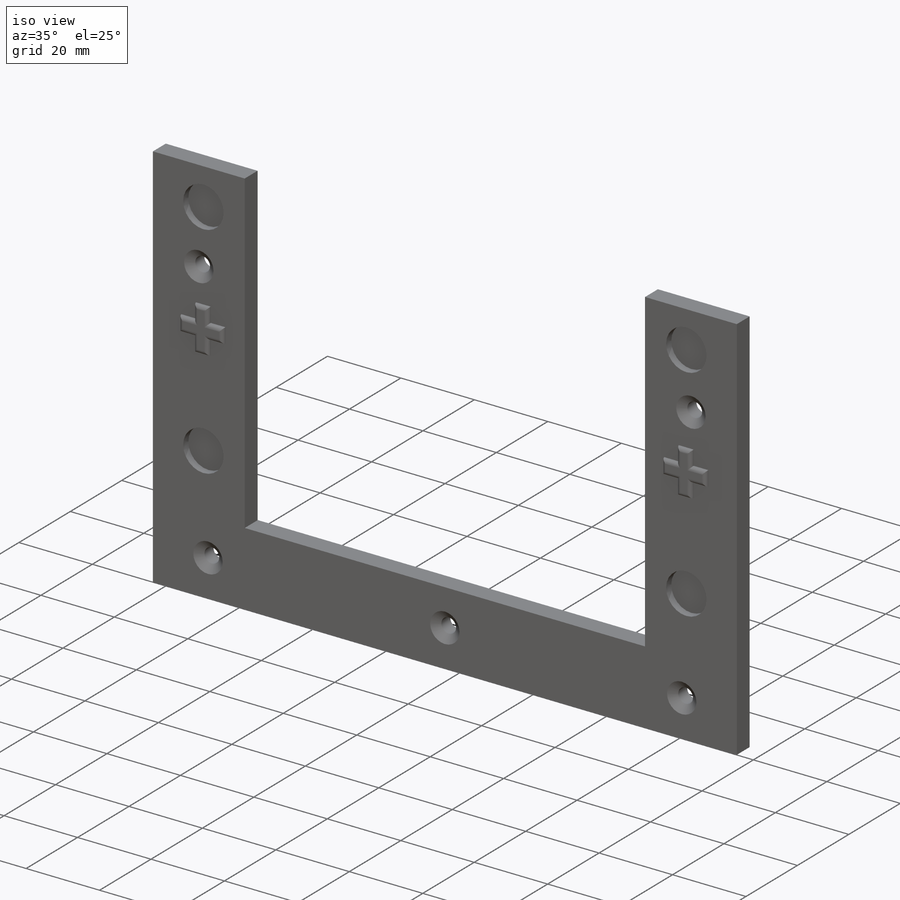
[diagram: iso view]
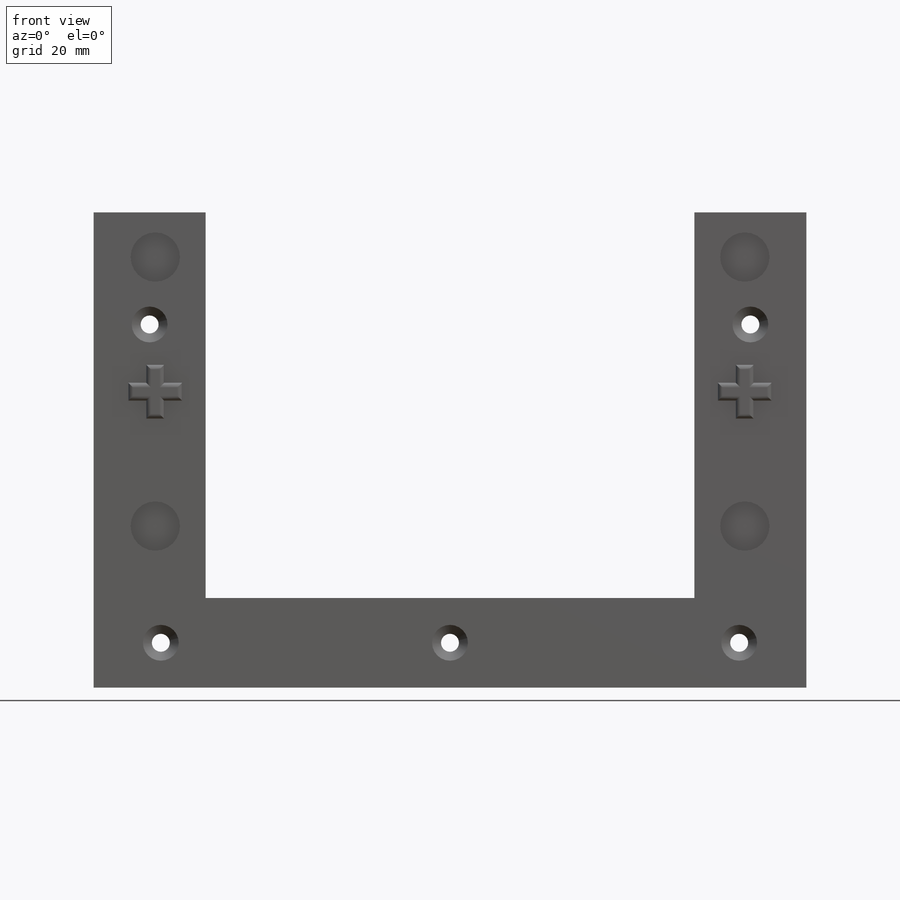
[diagram: front view]
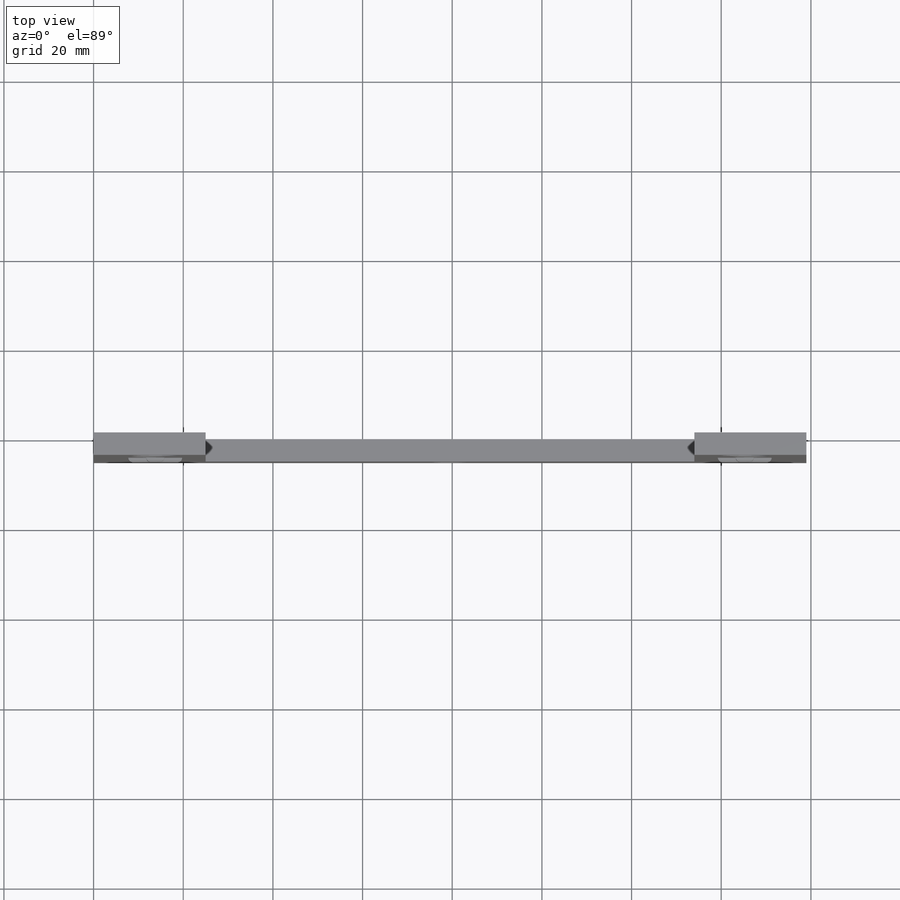
[diagram: top view]
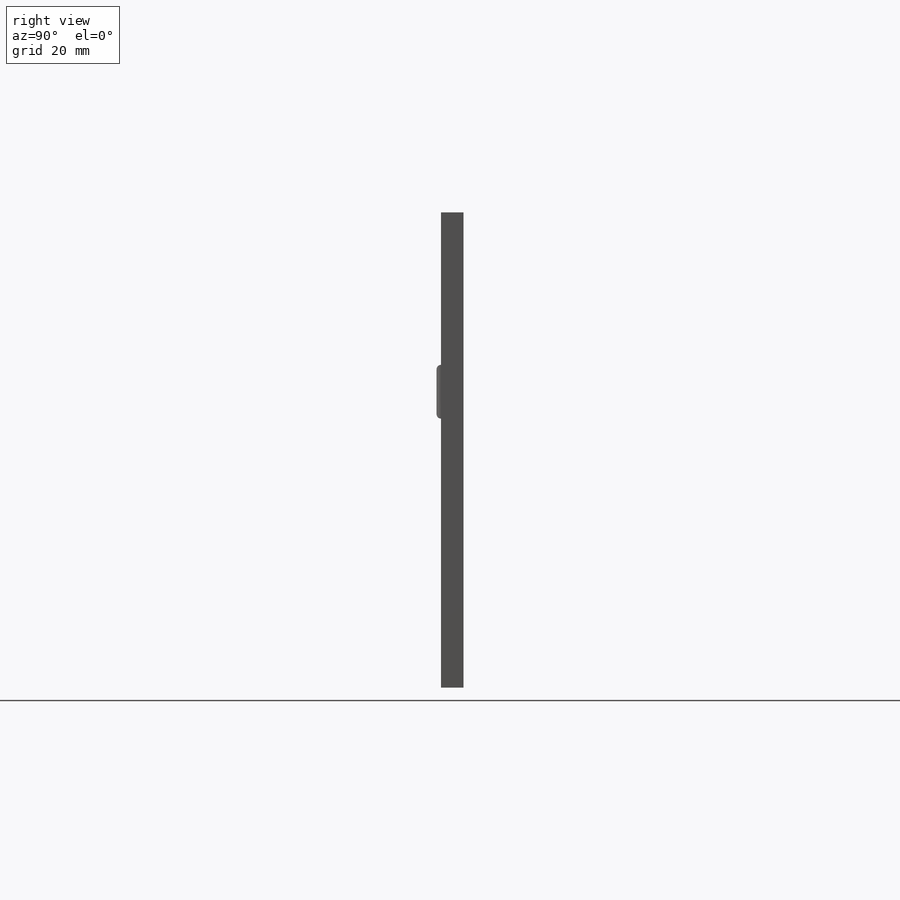
[diagram: right view]
SOLIDWORKS PART (.sldprt)
format: sldprt  version: not decoded by parser v0  size: 396,800 bytes
history: native  units: mm
features: sketch x5, plane x3, cut_extrude x3, extrude x2, material x1, chamfer x1, fillet x1 (+10 scaffold rows collapsed)
feature tree (26):
  scaffold x10  (default folders/planes/origin — collapsed)
  material  "Matériau <non spécifié>"
  plane  "Plan de face"
  plane  "Plan de dessus"
  plane  "Plan de droite"
  sketch  "Esquisse1"  dims[D1=159.0mm D2=106.0mm]
  extrude  "Boss.-Extru.1"  Depth=5mm
  sketch  "Esquisse2"  dims[c1.D1=20.8mm c1.D2=4.0mm c1.D3=20.0mm c1.D4=4.0mm c1.D5=20.8mm c1.D6=20.0mm c2.D1=30.0mm c2.D5=30.0mm c3.D1=4.0mm c3.D7=4.0mm c3.D8=8.0mm c3.D9=8.0mm c3.D10=8.0mm c3.D11=8.0mm c3.D12=3.0mm c3.D13=3.0mm c3.D14=79.5mm c3.D15=79.5mm c3.D4=4.0mm c3.D3=3.0mm c4.D4=3.0mm c4.D5=7.0mm c4.D6=45.0mm c4.D8=4.0mm c4.D2=4.0mm c4.D3=4.0mm c5.D4=4.0mm c5.D7=2.0mm c5.D8=1.5mm c5.D9=1.5mm c5.D5=13.75mm c6.D8=5.0mm c6.D9=5.0mm c6.D10=4.0mm c6.D11=4.0mm c6.D12=4.0mm c6.D13=4.0mm c6.D16=2.0mm c6.D17=3.0mm c7.D16=4.0mm c7.D17=4.0mm c7.D7=2.0mm c7.D18=4.0mm c7.D19=4.0mm c7.D20=51.0mm c7.D6=66.0mm c7.D8=4.0mm c7.D9=4.0mm c8.D20=4.0mm c8.D21=4.0mm c8.D22=4.0mm c8.D23=4.0mm c8.D24=4.0mm c8.D25=~176.097117mm c8.D3=4.0mm c8.D4=4.0mm c8.D8=4.0mm c8.D9=4.0mm c8.D10=4.0mm c8.D11=4.0mm c8.D12=4.0mm c8.D13=4.0mm c8.D16=4.0mm c8.D17=4.0mm c8.D18=2.0mm c8.D19=2.0mm]
  sketch  "Esquisse3"  dims[c1.D3=11.0mm c1.D4=11.0mm c1.D9=11.0mm c1.D10=11.0mm c1.D7=11.0mm c1.D1=~118.812731mm c1.D2=12.5mm c1.D5=~16.812731mm c1.D6=13.75mm c2.D7=12.5mm c2.D8=13.75mm c2.D11=~16.812731mm c2.D12=~28.795305mm c2.D5=60.0mm c3.D11=36.0mm c3.D12=60.0mm c3.D13=36.0mm c3.D7=13.75mm c4.D11=114.0mm c4.D12=60.0mm c4.D13=54.0mm c4.D14=36.0mm c5.D11=36.0mm c5.D2=13.75mm c5.D13=30.0mm c5.D15=~236.81206mm c6.D13=~236.81206mm]
  cut_extrude  "Enlèv. mat.-Extru.2"  Depth=2.2mm
  sketch  "Esquisse4"  dims[D1=25.0mm D2=25.0mm D3=20.0mm]
  cut_extrude  "Enlèv. mat.-Extru.3"  Depth=6mm
  sketch  "Esquisse5"  dims[D1=4.0mm D2=4.0mm D7=4.0mm D8=4.0mm D13=4.0mm D3=10.0mm D4=15.0mm D5=15.0mm D6=10.0mm D9=25.0mm D10=12.5mm D11=12.5mm D12=25.0mm D14=10.0mm D15=79.5mm D16=79.5mm]
  cut_extrude  "Enlèv. mat.-Extru.4"  Depth=6mm
  chamfer  "Chanfrein1"  Distance=2mm Angle=37deg
  extrude  "Boss.-Extru.2"  Depth=1mm
  fillet  "Congé2"  Radius=1mm
decode coverage: 12 of 12 modeling features carry decoded parameters
note: ~ marks probable driven/reference dimensions
note: suppression state not decoded; provenance and decode notes live in map.json
